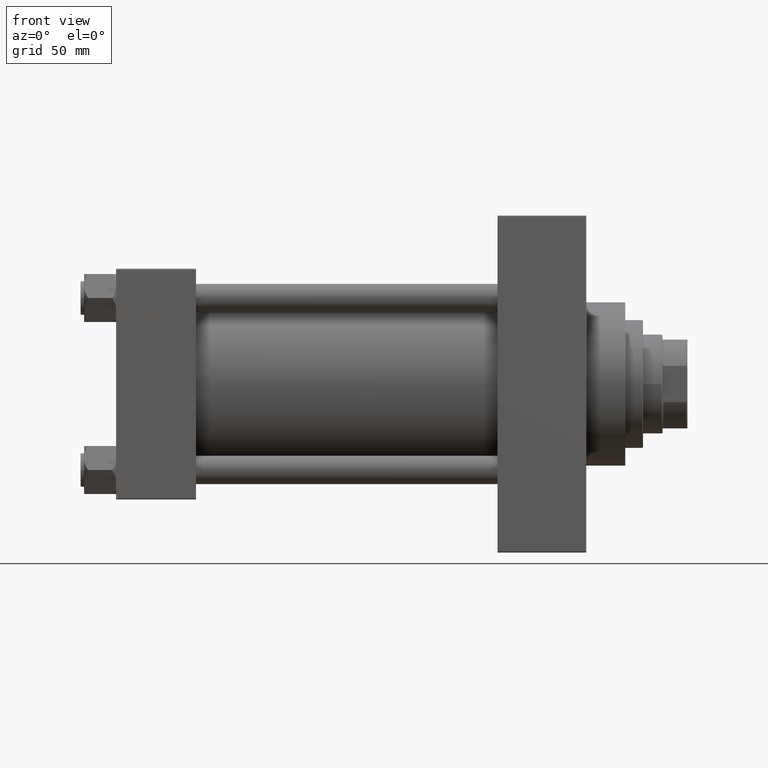
[diagram: clean part render]
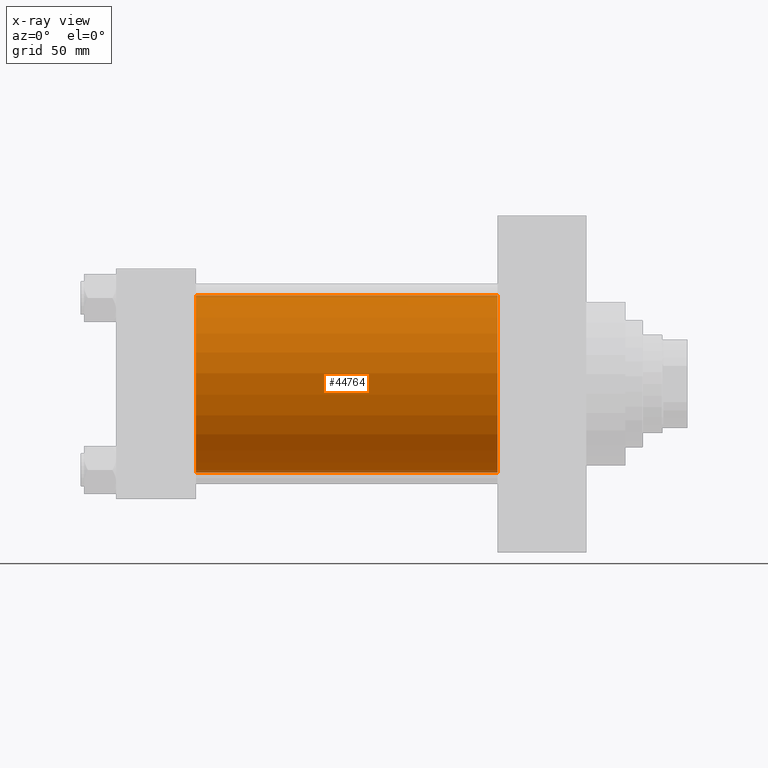
[diagram: x-ray — body ghosted, one internal face saturated and labeled with its STEP entity id]
A machine part, front view, then the same camera in x-ray: the body is ghosted and one INTERNAL B-rep face — a face not visible from any outside direction — is saturated and labeled: STEP entity #44764.
In plain terms, the highlighted cylindrical surface (partial cylindrical patch) has radius 50 mm, axis along (-1, -0, -0).
Its self-contained STEP definition (entity closure, byte-faithful):
#269 = EDGE_CURVE ( 'NONE', #37062, #38727, #30738, .T. ) ;
#398 = CYLINDRICAL_SURFACE ( 'NONE', #43335, 50.00000000000000000 ) ;
#542 = VERTEX_POINT ( 'NONE', #18550 ) ;
#1313 = ORIENTED_EDGE ( 'NONE', *, *, #269, .T. ) ;
#3153 = CARTESIAN_POINT ( 'NONE',  ( 215.0000000000000284, -2.602085213965210642E-15, 50.00000000000000000 ) ) ;
#3407 = ORIENTED_EDGE ( 'NONE', *, *, #4776, .F. ) ;
#4776 = EDGE_CURVE ( 'NONE', #542, #15179, #9257, .T. ) ;
#6144 = VECTOR ( 'NONE', #46521, 1000.000000000000000 ) ;
#9253 = VECTOR ( 'NONE', #29584, 1000.000000000000000 ) ;
#9257 = CIRCLE ( 'NONE', #33872, 50.00000000000000000 ) ;
#11262 = DIRECTION ( 'NONE',  ( 0.000000000000000000, 0.000000000000000000, 1.000000000000000000 ) ) ;
#15179 = VERTEX_POINT ( 'NONE', #35131 ) ;
#18550 = CARTESIAN_POINT ( 'NONE',  ( 45.00000000000000000, -2.602085213965210642E-15, 50.00000000000000000 ) ) ;
#21546 = CARTESIAN_POINT ( 'NONE',  ( 45.00000000000000000, -2.602085213965210642E-15, 0.000000000000000000 ) ) ;
#23712 = CARTESIAN_POINT ( 'NONE',  ( 215.0000000000000284, -2.602085213965210642E-15, 0.000000000000000000 ) ) ;
#27537 = EDGE_LOOP ( 'NONE', ( #1313, #45885, #3407, #45209 ) ) ;
#29367 = DIRECTION ( 'NONE',  ( -1.000000000000000000, -0.000000000000000000, -0.000000000000000000 ) ) ;
#29584 = DIRECTION ( 'NONE',  ( -1.000000000000000000, -0.000000000000000000, -0.000000000000000000 ) ) ;
#30084 = FACE_OUTER_BOUND ( 'NONE', #27537, .T. ) ;
#30712 = DIRECTION ( 'NONE',  ( 1.000000000000000000, 0.000000000000000000, 0.000000000000000000 ) ) ;
#30738 = CIRCLE ( 'NONE', #36904, 50.00000000000000000 ) ;
#31070 = LINE ( 'NONE', #45794, #6144 ) ;
#32515 = EDGE_CURVE ( 'NONE', #38727, #15179, #31070, .T. ) ;
#32951 = LINE ( 'NONE', #47229, #9253 ) ;
#33268 = EDGE_CURVE ( 'NONE', #37062, #542, #32951, .T. ) ;
#33872 = AXIS2_PLACEMENT_3D ( 'NONE', #21546, #46915, #39420 ) ;
#33937 = CARTESIAN_POINT ( 'NONE',  ( 215.0000000000000284, -2.602085213965210642E-15, 0.000000000000000000 ) ) ;
#34160 = CARTESIAN_POINT ( 'NONE',  ( 215.0000000000000284, 3.521148781771555838E-15, -50.00000000000000000 ) ) ;
#35131 = CARTESIAN_POINT ( 'NONE',  ( 45.00000000000000000, 3.521148781771555838E-15, -50.00000000000000000 ) ) ;
#36904 = AXIS2_PLACEMENT_3D ( 'NONE', #23712, #30712, #44965 ) ;
#37062 = VERTEX_POINT ( 'NONE', #3153 ) ;
#38727 = VERTEX_POINT ( 'NONE', #34160 ) ;
#39420 = DIRECTION ( 'NONE',  ( 0.000000000000000000, 0.000000000000000000, -1.000000000000000000 ) ) ;
#43335 = AXIS2_PLACEMENT_3D ( 'NONE', #33937, #29367, #11262 ) ;
#44764 = ADVANCED_FACE ( 'NONE', ( #30084 ), #398, .F. ) ;
#44965 = DIRECTION ( 'NONE',  ( 0.000000000000000000, 0.000000000000000000, -1.000000000000000000 ) ) ;
#45209 = ORIENTED_EDGE ( 'NONE', *, *, #33268, .F. ) ;
#45794 = CARTESIAN_POINT ( 'NONE',  ( 215.0000000000000284, 3.521148781771555838E-15, -50.00000000000000000 ) ) ;
#45885 = ORIENTED_EDGE ( 'NONE', *, *, #32515, .T. ) ;
#46521 = DIRECTION ( 'NONE',  ( -1.000000000000000000, -0.000000000000000000, -0.000000000000000000 ) ) ;
#46915 = DIRECTION ( 'NONE',  ( 1.000000000000000000, 0.000000000000000000, 0.000000000000000000 ) ) ;
#47229 = CARTESIAN_POINT ( 'NONE',  ( 215.0000000000000284, -2.602085213965210642E-15, 50.00000000000000000 ) ) ;